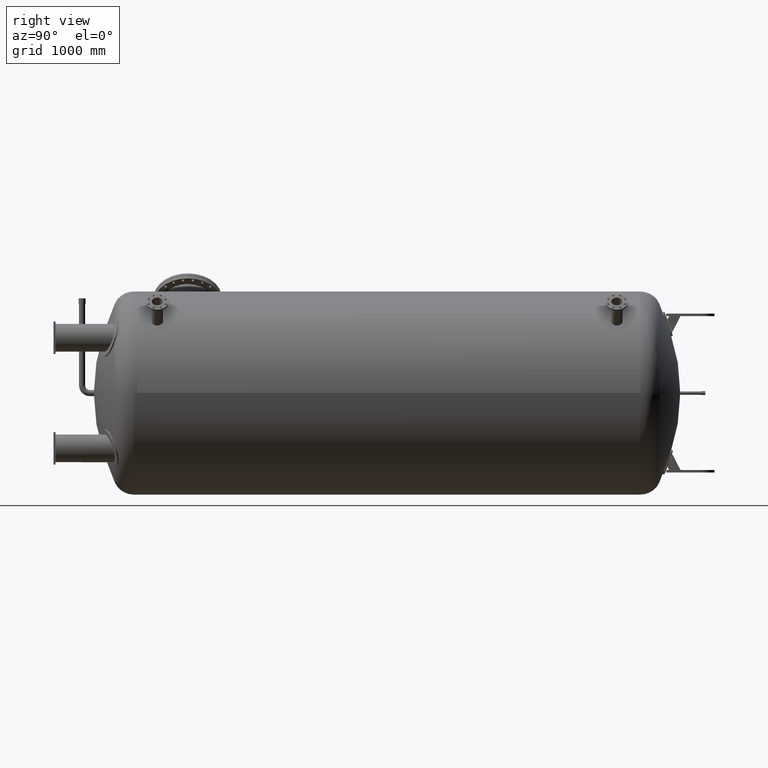
[diagram: clean part render]
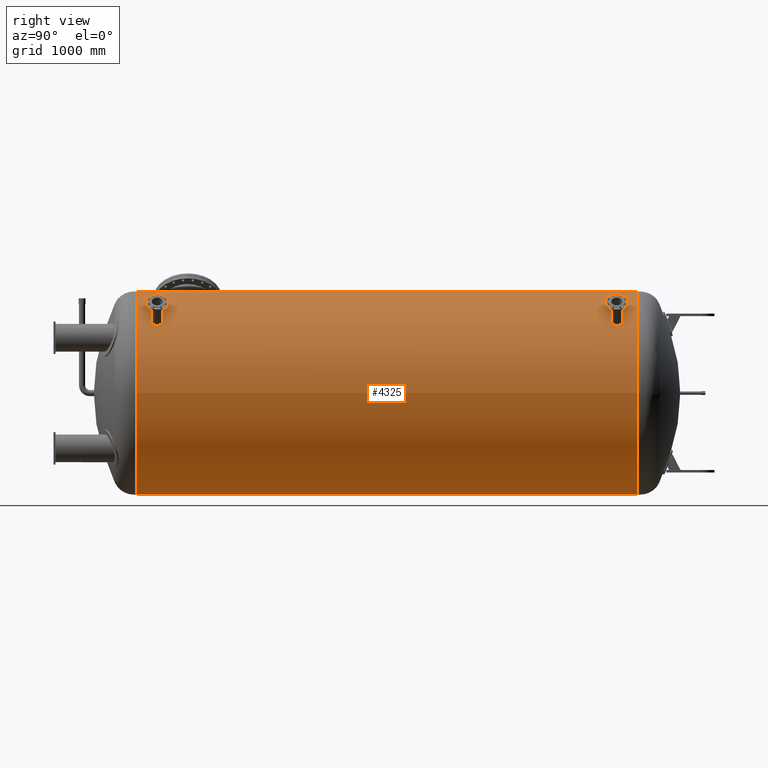
[diagram: same view with one face highlighted and labeled with its STEP entity id]
A machine part, right view. The second image highlights one B-rep face of the part: STEP entity #4325.
In plain terms, the highlighted cylindrical surface (bore or boss wall) has radius 1000 mm, axis along (0, 1, 0).
Its self-contained STEP definition (entity closure, byte-faithful):
#168=B_SPLINE_CURVE_WITH_KNOTS('',3,(#6986,#6987,#6988,#6989,#6990,#6991,
#6992,#6993,#6994,#6995,#6996,#6997,#6998,#6999,#7000,#7001,#7002,#7003),
 .UNSPECIFIED.,.F.,.F.,(4,2,2,2,2,2,2,2,4),(2.02660063331774,2.53325079136758,
3.03990094941743,3.54655110802646,4.05320126663548,4.55985142524451,5.06650158385354,
5.57315174190338,6.07980189995323),.UNSPECIFIED.);
#171=B_SPLINE_CURVE_WITH_KNOTS('',3,(#7043,#7044,#7045,#7046,#7047,#7048,
#7049,#7050,#7051,#7052,#7053,#7054,#7055,#7056,#7057,#7058,#7059,#7060,
#7061),.UNSPECIFIED.,.F.,.F.,(4,2,2,2,3,2,2,2,4),(6.07980189995323,6.58645205800307,
7.09310221605291,7.59975237466194,8.10640253327097,8.61305269188,9.11970285048903,
9.62635300853887,10.1330031665887),.UNSPECIFIED.);
#172=B_SPLINE_CURVE_WITH_KNOTS('',3,(#7065,#7066,#7067,#7068,#7069,#7070,
#7071,#7072,#7073,#7074,#7075,#7076,#7077,#7078,#7079,#7080,#7081,#7082),
 .UNSPECIFIED.,.F.,.F.,(4,2,2,2,2,2,2,2,4),(2.02660063331773,2.53325079136757,
3.0399009494174,3.54655110802643,4.05320126663546,4.55985142524449,5.06650158385352,
5.57315174190336,6.07980189995319),.UNSPECIFIED.);
#175=B_SPLINE_CURVE_WITH_KNOTS('',3,(#7122,#7123,#7124,#7125,#7126,#7127,
#7128,#7129,#7130,#7131,#7132,#7133,#7134,#7135,#7136,#7137,#7138,#7139,
#7140),.UNSPECIFIED.,.F.,.F.,(4,2,2,2,3,2,2,2,4),(6.07980189995319,6.58645205800303,
7.09310221605287,7.59975237466189,8.10640253327092,8.61305269187995,9.11970285048898,
9.62635300853882,10.1330031665887),.UNSPECIFIED.);
#176=B_SPLINE_CURVE_WITH_KNOTS('',3,(#7144,#7145,#7146,#7147,#7148,#7149,
#7150,#7151,#7152,#7153,#7154,#7155,#7156,#7157,#7158,#7159,#7160,#7161),
 .UNSPECIFIED.,.F.,.F.,(4,2,2,2,2,2,2,2,4),(2.02660063331772,2.53325079136756,
3.03990094941739,3.54655110802642,4.05320126663545,4.55985142524448,5.06650158385351,
5.57315174190334,6.07980189995318),.UNSPECIFIED.);
#179=B_SPLINE_CURVE_WITH_KNOTS('',3,(#7201,#7202,#7203,#7204,#7205,#7206,
#7207,#7208,#7209,#7210,#7211,#7212,#7213,#7214,#7215,#7216,#7217,#7218,
#7219),.UNSPECIFIED.,.F.,.F.,(4,2,2,2,3,2,2,2,4),(6.07980189995318,6.58645205800302,
7.09310221605285,7.59975237466188,8.10640253327091,8.61305269187994,9.11970285048897,
9.6263530085388,10.1330031665886),.UNSPECIFIED.);
#180=B_SPLINE_CURVE_WITH_KNOTS('',3,(#7223,#7224,#7225,#7226,#7227,#7228,
#7229,#7230,#7231,#7232,#7233,#7234,#7235,#7236,#7237,#7238,#7239,#7240),
 .UNSPECIFIED.,.F.,.F.,(4,2,2,2,2,2,2,2,4),(2.02660063331774,2.53325079136758,
3.03990094941743,3.54655110802646,4.05320126663548,4.55985142524451,5.06650158385354,
5.57315174190338,6.07980189995323),.UNSPECIFIED.);
#183=B_SPLINE_CURVE_WITH_KNOTS('',3,(#7280,#7281,#7282,#7283,#7284,#7285,
#7286,#7287,#7288,#7289,#7290,#7291,#7292,#7293,#7294,#7295,#7296,#7297,
#7298),.UNSPECIFIED.,.F.,.F.,(4,2,2,2,3,2,2,2,4),(6.07980189995323,6.58645205800307,
7.09310221605291,7.59975237466194,8.10640253327097,8.61305269188,9.11970285048903,
9.62635300853887,10.1330031665887),.UNSPECIFIED.);
#184=B_SPLINE_CURVE_WITH_KNOTS('',3,(#7302,#7303,#7304,#7305,#7306,#7307,
#7308,#7309,#7310,#7311,#7312,#7313,#7314,#7315,#7316,#7317,#7318,#7319),
 .UNSPECIFIED.,.F.,.F.,(4,2,2,2,2,2,2,2,4),(2.0266006333177,2.53325079136753,
3.03990094941737,3.54655110802638,4.0532012666354,4.55985142524445,5.06650158385351,
5.57315174190334,6.07980189995318),.UNSPECIFIED.);
#187=B_SPLINE_CURVE_WITH_KNOTS('',3,(#7359,#7360,#7361,#7362,#7363,#7364,
#7365,#7366,#7367,#7368,#7369,#7370,#7371,#7372,#7373,#7374,#7375,#7376,
#7377),.UNSPECIFIED.,.F.,.F.,(4,2,2,2,3,2,2,2,4),(6.07980189995318,6.58645205800302,
7.09310221605285,7.59975237466191,8.10640253327096,8.61305269187998,9.11970285048899,
9.62635300853883,10.1330031665887),.UNSPECIFIED.);
#188=B_SPLINE_CURVE_WITH_KNOTS('',3,(#7381,#7382,#7383,#7384,#7385,#7386,
#7387,#7388,#7389,#7390,#7391,#7392,#7393,#7394,#7395,#7396,#7397,#7398,
#7399,#7400,#7401,#7402,#7403,#7404,#7405,#7406,#7407,#7408,#7409,#7410,
#7411,#7412,#7413,#7414),.UNSPECIFIED.,.F.,.F.,(4,2,2,2,2,2,2,2,2,2,2,2,
2,2,2,2,4),(8.61307087268436,9.68970453753816,10.766338202392,11.8429718672457,
12.9196055320995,13.9962395854168,15.0728736387341,16.1495076920514,17.2261417453687,
18.302775798686,19.3794098520033,20.4560439053206,21.532677958638,22.6093116234917,
23.6859452883456,24.7625789531993,25.8392126180531),.UNSPECIFIED.);
#191=B_SPLINE_CURVE_WITH_KNOTS('',3,(#7486,#7487,#7488,#7489,#7490,#7491,
#7492,#7493,#7494,#7495,#7496,#7497,#7498,#7499,#7500,#7501,#7502,#7503,
#7504,#7505,#7506,#7507,#7508,#7509,#7510,#7511,#7512,#7513,#7514,#7515,
#7516,#7517,#7518,#7519,#7520),.UNSPECIFIED.,.F.,.F.,(4,2,2,2,2,2,2,2,3,
2,2,2,2,2,2,2,4),(25.8392126180531,26.9158462829069,27.9924799477607,29.0691136126145,
30.1457472774683,31.2223813307857,32.299015384103,33.3756494374203,34.4522834907376,
35.5289175440549,36.6055515973722,37.6821856506894,38.7588197040067,39.8354533688605,
40.9120870337143,41.9887206985681,43.0653543634219),.UNSPECIFIED.);
#192=B_SPLINE_CURVE_WITH_KNOTS('',3,(#7524,#7525,#7526,#7527,#7528,#7529,
#7530,#7531,#7532,#7533,#7534,#7535,#7536,#7537,#7538,#7539,#7540,#7541,
#7542,#7543,#7544,#7545,#7546,#7547,#7548,#7549,#7550,#7551,#7552,#7553,
#7554,#7555,#7556,#7557),.UNSPECIFIED.,.F.,.F.,(4,2,2,2,2,2,2,2,2,2,2,2,
2,2,2,2,4),(8.61307087268442,9.68970453753821,10.766338202392,11.8429718672458,
12.9196055320996,13.9962395854169,15.0728736387342,16.1495076920515,17.2261417453688,
18.3027757986862,19.3794098520035,20.4560439053208,21.5326779586381,22.6093116234919,
23.6859452883457,24.7625789531995,25.8392126180533),.UNSPECIFIED.);
#195=B_SPLINE_CURVE_WITH_KNOTS('',3,(#7629,#7630,#7631,#7632,#7633,#7634,
#7635,#7636,#7637,#7638,#7639,#7640,#7641,#7642,#7643,#7644,#7645,#7646,
#7647,#7648,#7649,#7650,#7651,#7652,#7653,#7654,#7655,#7656,#7657,#7658,
#7659,#7660,#7661,#7662,#7663),.UNSPECIFIED.,.F.,.F.,(4,2,2,2,2,2,2,2,3,
2,2,2,2,2,2,2,4),(25.8392126180533,26.9158462829071,27.9924799477609,29.0691136126147,
30.1457472774684,31.2223813307858,32.2990153841031,33.3756494374204,34.4522834907377,
35.528917544055,36.6055515973723,37.6821856506896,38.758819704007,39.8354533688608,
40.9120870337145,41.9887206985683,43.0653543634221),.UNSPECIFIED.);
#196=B_SPLINE_CURVE_WITH_KNOTS('',3,(#7667,#7668,#7669,#7670,#7671,#7672,
#7673,#7674,#7675,#7676,#7677,#7678,#7679,#7680,#7681,#7682,#7683,#7684,
#7685,#7686,#7687,#7688,#7689,#7690,#7691,#7692,#7693,#7694,#7695,#7696,
#7697,#7698,#7699,#7700),.UNSPECIFIED.,.F.,.F.,(4,2,2,2,2,2,2,2,2,2,2,2,
2,2,2,2,4),(8.61307087268436,9.68970453753816,10.766338202392,11.8429718672457,
12.9196055320995,13.9962395854168,15.0728736387341,16.1495076920514,17.2261417453687,
18.302775798686,19.3794098520033,20.4560439053206,21.532677958638,22.6093116234917,
23.6859452883456,24.7625789531993,25.8392126180531),.UNSPECIFIED.);
#199=B_SPLINE_CURVE_WITH_KNOTS('',3,(#7772,#7773,#7774,#7775,#7776,#7777,
#7778,#7779,#7780,#7781,#7782,#7783,#7784,#7785,#7786,#7787,#7788,#7789,
#7790,#7791,#7792,#7793,#7794,#7795,#7796,#7797,#7798,#7799,#7800,#7801,
#7802,#7803,#7804,#7805,#7806),.UNSPECIFIED.,.F.,.F.,(4,2,2,2,2,2,2,2,3,
2,2,2,2,2,2,2,4),(25.8392126180531,26.9158462829069,27.9924799477607,29.0691136126145,
30.1457472774683,31.2223813307857,32.299015384103,33.3756494374203,34.4522834907376,
35.5289175440549,36.6055515973722,37.6821856506894,38.7588197040067,39.8354533688605,
40.9120870337143,41.9887206985681,43.0653543634219),.UNSPECIFIED.);
#200=B_SPLINE_CURVE_WITH_KNOTS('',3,(#7810,#7811,#7812,#7813,#7814,#7815,
#7816,#7817,#7818,#7819,#7820,#7821,#7822,#7823,#7824,#7825,#7826,#7827,
#7828,#7829,#7830,#7831,#7832,#7833,#7834,#7835,#7836,#7837,#7838,#7839,
#7840,#7841,#7842,#7843),.UNSPECIFIED.,.F.,.F.,(4,2,2,2,2,2,2,2,2,2,2,2,
2,2,2,2,4),(8.61307087268442,9.68970453753821,10.766338202392,11.8429718672458,
12.9196055320996,13.9962395854169,15.0728736387342,16.1495076920515,17.2261417453688,
18.3027757986862,19.3794098520035,20.4560439053208,21.5326779586381,22.6093116234919,
23.6859452883457,24.7625789531995,25.8392126180533),.UNSPECIFIED.);
#203=B_SPLINE_CURVE_WITH_KNOTS('',3,(#7915,#7916,#7917,#7918,#7919,#7920,
#7921,#7922,#7923,#7924,#7925,#7926,#7927,#7928,#7929,#7930,#7931,#7932,
#7933,#7934,#7935,#7936,#7937,#7938,#7939,#7940,#7941,#7942,#7943,#7944,
#7945,#7946,#7947,#7948,#7949),.UNSPECIFIED.,.F.,.F.,(4,2,2,2,2,2,2,2,3,
2,2,2,2,2,2,2,4),(25.8392126180533,26.9158462829071,27.9924799477609,29.0691136126147,
30.1457472774684,31.2223813307858,32.2990153841031,33.3756494374204,34.4522834907377,
35.528917544055,36.6055515973723,37.6821856506896,38.758819704007,39.8354533688608,
40.9120870337145,41.9887206985683,43.0653543634221),.UNSPECIFIED.);
#204=B_SPLINE_CURVE_WITH_KNOTS('',3,(#7953,#7954,#7955,#7956,#7957,#7958,
#7959,#7960,#7961,#7962,#7963,#7964,#7965,#7966,#7967,#7968,#7969,#7970,
#7971,#7972,#7973,#7974,#7975,#7976,#7977,#7978,#7979,#7980,#7981,#7982,
#7983,#7984,#7985,#7986,#7987,#7988,#7989,#7990,#7991,#7992,#7993,#7994,
#7995,#7996,#7997,#7998,#7999,#8000,#8001,#8002,#8003,#8004,#8005,#8006,
#8007,#8008,#8009,#8010,#8011,#8012,#8013,#8014,#8015,#8016,#8017,#8018),
 .UNSPECIFIED.,.F.,.F.,(4,2,2,2,2,2,2,2,2,2,2,2,2,2,2,2,2,2,2,2,2,2,2,2,
2,2,2,2,2,2,2,2,4),(38.4535249335391,40.8566908462286,43.2598567589182,
45.6630226716077,48.0661885842972,50.4693544969867,52.8725204096762,55.2756863223657,
57.6788522350552,60.0823769390581,62.485901643061,64.8894263470639,67.2929510510668,
69.6964757550697,72.1000004590725,74.5035251630754,76.9070498670783,79.3105745710812,
81.7140992750841,84.117623979087,86.5211486830898,88.9246733870927,91.3281980910956,
93.7317227950985,96.1352474991014,98.5384134117909,100.94157932448,103.34474523717,
105.747911149859,108.151077062549,110.554242975238,112.957408887928,115.360574800617),
 .UNSPECIFIED.);
#207=B_SPLINE_CURVE_WITH_KNOTS('',3,(#8154,#8155,#8156,#8157,#8158,#8159,
#8160,#8161,#8162,#8163,#8164,#8165,#8166,#8167,#8168,#8169,#8170,#8171,
#8172,#8173,#8174,#8175,#8176,#8177,#8178,#8179,#8180,#8181,#8182,#8183,
#8184,#8185,#8186,#8187,#8188,#8189,#8190,#8191,#8192,#8193,#8194,#8195,
#8196,#8197,#8198,#8199,#8200,#8201,#8202,#8203,#8204,#8205,#8206,#8207,
#8208,#8209,#8210,#8211,#8212,#8213,#8214,#8215,#8216,#8217,#8218,#8219,
#8220),.UNSPECIFIED.,.F.,.F.,(4,2,2,2,2,2,2,2,2,2,2,2,2,2,2,2,3,2,2,2,2,
2,2,2,2,2,2,2,2,2,2,2,4),(115.360574800617,117.763740713307,120.166906625997,
122.570072538686,124.973238451376,127.376404364065,129.779570276755,132.182736189444,
134.585902102134,136.989426806136,139.392951510139,141.796476214142,144.200000918145,
146.603525622148,149.007050326151,151.410575030154,153.814099734157,156.21762443816,
158.621149142162,161.024673846165,163.428198550168,165.831723254171,168.235247958174,
170.638772662177,173.04229736618,175.445463278869,177.848629191559,180.251795104248,
182.654961016938,185.058126929627,187.461292842317,189.864458755006,192.267624667696),
 .UNSPECIFIED.);
#419=FACE_BOUND('',#862,.T.);
#420=FACE_BOUND('',#863,.T.);
#421=FACE_BOUND('',#864,.T.);
#422=FACE_BOUND('',#865,.T.);
#423=FACE_BOUND('',#866,.T.);
#424=FACE_BOUND('',#867,.T.);
#425=FACE_BOUND('',#868,.T.);
#426=FACE_BOUND('',#869,.T.);
#427=FACE_BOUND('',#870,.T.);
#428=FACE_BOUND('',#871,.T.);
#613=FACE_OUTER_BOUND('',#861,.T.);
#861=EDGE_LOOP('',(#3074,#3075,#3076,#3077,#3078,#3079));
#862=EDGE_LOOP('',(#3080,#3081));
#863=EDGE_LOOP('',(#3082,#3083));
#864=EDGE_LOOP('',(#3084,#3085));
#865=EDGE_LOOP('',(#3086,#3087));
#866=EDGE_LOOP('',(#3088,#3089));
#867=EDGE_LOOP('',(#3090,#3091));
#868=EDGE_LOOP('',(#3092,#3093));
#869=EDGE_LOOP('',(#3094,#3095));
#870=EDGE_LOOP('',(#3096,#3097));
#871=EDGE_LOOP('',(#3098,#3099));
#1247=LINE('',#8241,#1475);
#1475=VECTOR('',#5675,1000.);
#1711=CIRCLE('',#5033,1000.);
#1712=CIRCLE('',#5034,1000.);
#1713=CIRCLE('',#5036,1000.);
#1714=CIRCLE('',#5037,1000.);
#1978=VERTEX_POINT('',#6984);
#1979=VERTEX_POINT('',#6985);
#1982=VERTEX_POINT('',#7063);
#1983=VERTEX_POINT('',#7064);
#1986=VERTEX_POINT('',#7142);
#1987=VERTEX_POINT('',#7143);
#1990=VERTEX_POINT('',#7221);
#1991=VERTEX_POINT('',#7222);
#1994=VERTEX_POINT('',#7300);
#1995=VERTEX_POINT('',#7301);
#1998=VERTEX_POINT('',#7379);
#1999=VERTEX_POINT('',#7380);
#2002=VERTEX_POINT('',#7522);
#2003=VERTEX_POINT('',#7523);
#2006=VERTEX_POINT('',#7665);
#2007=VERTEX_POINT('',#7666);
#2010=VERTEX_POINT('',#7808);
#2011=VERTEX_POINT('',#7809);
#2014=VERTEX_POINT('',#7951);
#2015=VERTEX_POINT('',#7952);
#2022=VERTEX_POINT('',#8232);
#2023=VERTEX_POINT('',#8233);
#2024=VERTEX_POINT('',#8237);
#2025=VERTEX_POINT('',#8238);
#2384=EDGE_CURVE('',#1978,#1979,#168,.T.);
#2388=EDGE_CURVE('',#1979,#1978,#171,.T.);
#2389=EDGE_CURVE('',#1982,#1983,#172,.T.);
#2393=EDGE_CURVE('',#1983,#1982,#175,.T.);
#2394=EDGE_CURVE('',#1986,#1987,#176,.T.);
#2398=EDGE_CURVE('',#1987,#1986,#179,.T.);
#2399=EDGE_CURVE('',#1990,#1991,#180,.T.);
#2403=EDGE_CURVE('',#1991,#1990,#183,.T.);
#2404=EDGE_CURVE('',#1994,#1995,#184,.T.);
#2408=EDGE_CURVE('',#1995,#1994,#187,.T.);
#2409=EDGE_CURVE('',#1998,#1999,#188,.T.);
#2413=EDGE_CURVE('',#1999,#1998,#191,.T.);
#2414=EDGE_CURVE('',#2002,#2003,#192,.T.);
#2418=EDGE_CURVE('',#2003,#2002,#195,.T.);
#2419=EDGE_CURVE('',#2006,#2007,#196,.T.);
#2423=EDGE_CURVE('',#2007,#2006,#199,.T.);
#2424=EDGE_CURVE('',#2010,#2011,#200,.T.);
#2428=EDGE_CURVE('',#2011,#2010,#203,.T.);
#2429=EDGE_CURVE('',#2014,#2015,#204,.T.);
#2433=EDGE_CURVE('',#2015,#2014,#207,.T.);
#2439=EDGE_CURVE('',#2022,#2023,#1711,.T.);
#2440=EDGE_CURVE('',#2023,#2022,#1712,.T.);
#2441=EDGE_CURVE('',#2024,#2025,#1713,.T.);
#2442=EDGE_CURVE('',#2025,#2024,#1714,.T.);
#2443=EDGE_CURVE('',#2025,#2023,#1247,.T.);
#3074=ORIENTED_EDGE('',*,*,#2441,.F.);
#3075=ORIENTED_EDGE('',*,*,#2442,.F.);
#3076=ORIENTED_EDGE('',*,*,#2443,.T.);
#3077=ORIENTED_EDGE('',*,*,#2440,.T.);
#3078=ORIENTED_EDGE('',*,*,#2439,.T.);
#3079=ORIENTED_EDGE('',*,*,#2443,.F.);
#3080=ORIENTED_EDGE('',*,*,#2384,.T.);
#3081=ORIENTED_EDGE('',*,*,#2388,.T.);
#3082=ORIENTED_EDGE('',*,*,#2389,.T.);
#3083=ORIENTED_EDGE('',*,*,#2393,.T.);
#3084=ORIENTED_EDGE('',*,*,#2394,.T.);
#3085=ORIENTED_EDGE('',*,*,#2398,.T.);
#3086=ORIENTED_EDGE('',*,*,#2399,.T.);
#3087=ORIENTED_EDGE('',*,*,#2403,.T.);
#3088=ORIENTED_EDGE('',*,*,#2404,.T.);
#3089=ORIENTED_EDGE('',*,*,#2408,.T.);
#3090=ORIENTED_EDGE('',*,*,#2409,.T.);
#3091=ORIENTED_EDGE('',*,*,#2413,.T.);
#3092=ORIENTED_EDGE('',*,*,#2414,.T.);
#3093=ORIENTED_EDGE('',*,*,#2418,.T.);
#3094=ORIENTED_EDGE('',*,*,#2419,.T.);
#3095=ORIENTED_EDGE('',*,*,#2423,.T.);
#3096=ORIENTED_EDGE('',*,*,#2424,.T.);
#3097=ORIENTED_EDGE('',*,*,#2428,.T.);
#3098=ORIENTED_EDGE('',*,*,#2429,.T.);
#3099=ORIENTED_EDGE('',*,*,#2433,.T.);
#4114=CYLINDRICAL_SURFACE('',#5035,1000.);
#4325=ADVANCED_FACE('',(#613,#419,#420,#421,#422,#423,#424,#425,#426,#427,
#428),#4114,.T.);
#5033=AXIS2_PLACEMENT_3D('',#8234,#5665,#5666);
#5034=AXIS2_PLACEMENT_3D('',#8235,#5667,#5668);
#5035=AXIS2_PLACEMENT_3D('',#8236,#5669,#5670);
#5036=AXIS2_PLACEMENT_3D('',#8239,#5671,#5672);
#5037=AXIS2_PLACEMENT_3D('',#8240,#5673,#5674);
#5665=DIRECTION('center_axis',(0.,1.,0.));
#5666=DIRECTION('ref_axis',(1.,0.,0.));
#5667=DIRECTION('center_axis',(0.,1.,0.));
#5668=DIRECTION('ref_axis',(1.,0.,0.));
#5669=DIRECTION('center_axis',(0.,1.,0.));
#5670=DIRECTION('ref_axis',(-1.,0.,0.));
#5671=DIRECTION('center_axis',(0.,1.,0.));
#5672=DIRECTION('ref_axis',(1.,0.,0.));
#5673=DIRECTION('center_axis',(0.,1.,0.));
#5674=DIRECTION('ref_axis',(1.,0.,0.));
#5675=DIRECTION('',(0.,-1.,0.));
#6984=CARTESIAN_POINT('',(-939.692620785909,3607.2,342.020143325669));
#6985=CARTESIAN_POINT('',(-939.692620785909,3580.3,342.020143325669));
#6986=CARTESIAN_POINT('Ctrl Pts',(-939.692620785908,3607.2,342.020143325669));
#6987=CARTESIAN_POINT('Ctrl Pts',(-939.115005587001,3607.2,343.6071280418));
#6988=CARTESIAN_POINT('Ctrl Pts',(-938.494460783695,3606.86248201896,345.298265940961));
#6989=CARTESIAN_POINT('Ctrl Pts',(-937.345047756917,3605.48985399326,348.40638172843));
#6990=CARTESIAN_POINT('Ctrl Pts',(-936.816408682386,3604.45474507635,349.823444851599));
#6991=CARTESIAN_POINT('Ctrl Pts',(-935.978210479479,3602.06642733625,352.059960307954));
#6992=CARTESIAN_POINT('Ctrl Pts',(-935.612817189783,3600.55401836514,353.028507927965));
#6993=CARTESIAN_POINT('Ctrl Pts',(-935.127321645761,3597.24022248818,354.312522233281));
#6994=CARTESIAN_POINT('Ctrl Pts',(-935.007449641651,3595.43883386203,354.628071526517));
#6995=CARTESIAN_POINT('Ctrl Pts',(-935.007449641651,3592.06116613797,354.628071526517));
#6996=CARTESIAN_POINT('Ctrl Pts',(-935.127321645761,3590.25977751182,354.312522233281));
#6997=CARTESIAN_POINT('Ctrl Pts',(-935.612817189783,3586.94598163486,353.028507927965));
#6998=CARTESIAN_POINT('Ctrl Pts',(-935.978210479479,3585.43357266375,352.059960307954));
#6999=CARTESIAN_POINT('Ctrl Pts',(-936.816408682386,3583.04525492365,349.823444851599));
#7000=CARTESIAN_POINT('Ctrl Pts',(-937.345047756917,3582.01014600674,348.40638172843));
#7001=CARTESIAN_POINT('Ctrl Pts',(-938.494460783695,3580.63751798104,345.298265940961));
#7002=CARTESIAN_POINT('Ctrl Pts',(-939.115005587001,3580.3,343.6071280418));
#7003=CARTESIAN_POINT('Ctrl Pts',(-939.692620785909,3580.3,342.020143325669));
#7043=CARTESIAN_POINT('Ctrl Pts',(-939.692620785909,3580.3,342.020143325669));
#7044=CARTESIAN_POINT('Ctrl Pts',(-940.270235984816,3580.3,340.433158609537));
#7045=CARTESIAN_POINT('Ctrl Pts',(-940.881913574389,3580.63751798104,338.738793308516));
#7046=CARTESIAN_POINT('Ctrl Pts',(-941.999270430033,3582.01014600674,335.619010028931));
#7047=CARTESIAN_POINT('Ctrl Pts',(-942.505180022289,3583.04525492365,334.193674050773));
#7048=CARTESIAN_POINT('Ctrl Pts',(-943.300687370937,3585.43357266375,331.941620394192));
#7049=CARTESIAN_POINT('Ctrl Pts',(-943.643350281347,3586.94598163486,330.964799592708));
#7050=CARTESIAN_POINT('Ctrl Pts',(-944.096787603808,3590.25977751182,329.66911704898));
#7051=CARTESIAN_POINT('Ctrl Pts',(-944.207791497111,3592.06116613797,329.350340027376));
#7052=CARTESIAN_POINT('Ctrl Pts',(-944.207791497111,3593.75,329.350340027376));
#7053=CARTESIAN_POINT('Ctrl Pts',(-944.207791497111,3595.43883386203,329.350340027376));
#7054=CARTESIAN_POINT('Ctrl Pts',(-944.096787603808,3597.24022248818,329.66911704898));
#7055=CARTESIAN_POINT('Ctrl Pts',(-943.643350281347,3600.55401836514,330.964799592708));
#7056=CARTESIAN_POINT('Ctrl Pts',(-943.300687370937,3602.06642733625,331.941620394192));
#7057=CARTESIAN_POINT('Ctrl Pts',(-942.505180022289,3604.45474507635,334.193674050773));
#7058=CARTESIAN_POINT('Ctrl Pts',(-941.999270430033,3605.48985399326,335.619010028931));
#7059=CARTESIAN_POINT('Ctrl Pts',(-940.881913574389,3606.86248201896,338.738793308516));
#7060=CARTESIAN_POINT('Ctrl Pts',(-940.270235984816,3607.2,340.433158609537));
#7061=CARTESIAN_POINT('Ctrl Pts',(-939.692620785908,3607.2,342.020143325669));
#7063=CARTESIAN_POINT('',(-939.692620785909,2475.95,342.020143325669));
#7064=CARTESIAN_POINT('',(-939.692620785909,2449.05,342.020143325669));
#7065=CARTESIAN_POINT('Ctrl Pts',(-939.692620785908,2475.95,342.020143325669));
#7066=CARTESIAN_POINT('Ctrl Pts',(-939.115005587001,2475.95,343.6071280418));
#7067=CARTESIAN_POINT('Ctrl Pts',(-938.494460783695,2475.61248201896,345.298265940961));
#7068=CARTESIAN_POINT('Ctrl Pts',(-937.345047756917,2474.23985399326,348.40638172843));
#7069=CARTESIAN_POINT('Ctrl Pts',(-936.816408682386,2473.20474507635,349.823444851599));
#7070=CARTESIAN_POINT('Ctrl Pts',(-935.978210479479,2470.81642733625,352.059960307954));
#7071=CARTESIAN_POINT('Ctrl Pts',(-935.612817189783,2469.30401836514,353.028507927964));
#7072=CARTESIAN_POINT('Ctrl Pts',(-935.127321645761,2465.99022248818,354.31252223328));
#7073=CARTESIAN_POINT('Ctrl Pts',(-935.007449641651,2464.18883386203,354.628071526517));
#7074=CARTESIAN_POINT('Ctrl Pts',(-935.007449641651,2460.81116613797,354.628071526517));
#7075=CARTESIAN_POINT('Ctrl Pts',(-935.127321645761,2459.00977751182,354.31252223328));
#7076=CARTESIAN_POINT('Ctrl Pts',(-935.612817189783,2455.69598163486,353.028507927964));
#7077=CARTESIAN_POINT('Ctrl Pts',(-935.978210479479,2454.18357266375,352.059960307954));
#7078=CARTESIAN_POINT('Ctrl Pts',(-936.816408682386,2451.79525492365,349.823444851599));
#7079=CARTESIAN_POINT('Ctrl Pts',(-937.345047756917,2450.76014600674,348.40638172843));
#7080=CARTESIAN_POINT('Ctrl Pts',(-938.494460783695,2449.38751798104,345.298265940961));
#7081=CARTESIAN_POINT('Ctrl Pts',(-939.115005587001,2449.05,343.6071280418));
#7082=CARTESIAN_POINT('Ctrl Pts',(-939.692620785908,2449.05,342.020143325669));
#7122=CARTESIAN_POINT('Ctrl Pts',(-939.692620785909,2449.05,342.020143325669));
#7123=CARTESIAN_POINT('Ctrl Pts',(-940.270235984816,2449.05,340.433158609537));
#7124=CARTESIAN_POINT('Ctrl Pts',(-940.881913574389,2449.38751798104,338.738793308516));
#7125=CARTESIAN_POINT('Ctrl Pts',(-941.999270430033,2450.76014600674,335.619010028931));
#7126=CARTESIAN_POINT('Ctrl Pts',(-942.505180022289,2451.79525492365,334.193674050773));
#7127=CARTESIAN_POINT('Ctrl Pts',(-943.300687370937,2454.18357266375,331.941620394192));
#7128=CARTESIAN_POINT('Ctrl Pts',(-943.643350281347,2455.69598163486,330.964799592708));
#7129=CARTESIAN_POINT('Ctrl Pts',(-944.096787603807,2459.00977751182,329.66911704898));
#7130=CARTESIAN_POINT('Ctrl Pts',(-944.207791497111,2460.81116613797,329.350340027376));
#7131=CARTESIAN_POINT('Ctrl Pts',(-944.207791497111,2462.5,329.350340027376));
#7132=CARTESIAN_POINT('Ctrl Pts',(-944.207791497111,2464.18883386203,329.350340027376));
#7133=CARTESIAN_POINT('Ctrl Pts',(-944.096787603807,2465.99022248818,329.66911704898));
#7134=CARTESIAN_POINT('Ctrl Pts',(-943.643350281347,2469.30401836514,330.964799592708));
#7135=CARTESIAN_POINT('Ctrl Pts',(-943.300687370937,2470.81642733625,331.941620394192));
#7136=CARTESIAN_POINT('Ctrl Pts',(-942.505180022289,2473.20474507635,334.193674050773));
#7137=CARTESIAN_POINT('Ctrl Pts',(-941.999270430033,2474.23985399326,335.619010028931));
#7138=CARTESIAN_POINT('Ctrl Pts',(-940.881913574389,2475.61248201896,338.738793308516));
#7139=CARTESIAN_POINT('Ctrl Pts',(-940.270235984816,2475.95,340.433158609537));
#7140=CARTESIAN_POINT('Ctrl Pts',(-939.692620785909,2475.95,342.020143325669));
#7142=CARTESIAN_POINT('',(-939.692620785909,1344.7,342.020143325669));
#7143=CARTESIAN_POINT('',(-939.692620785909,1317.8,342.020143325669));
#7144=CARTESIAN_POINT('Ctrl Pts',(-939.692620785908,1344.7,342.020143325669));
#7145=CARTESIAN_POINT('Ctrl Pts',(-939.115005587001,1344.7,343.6071280418));
#7146=CARTESIAN_POINT('Ctrl Pts',(-938.494460783695,1344.36248201896,345.298265940961));
#7147=CARTESIAN_POINT('Ctrl Pts',(-937.345047756917,1342.98985399326,348.40638172843));
#7148=CARTESIAN_POINT('Ctrl Pts',(-936.816408682386,1341.95474507635,349.823444851599));
#7149=CARTESIAN_POINT('Ctrl Pts',(-935.978210479479,1339.56642733625,352.059960307954));
#7150=CARTESIAN_POINT('Ctrl Pts',(-935.612817189783,1338.05401836514,353.028507927964));
#7151=CARTESIAN_POINT('Ctrl Pts',(-935.127321645761,1334.74022248818,354.31252223328));
#7152=CARTESIAN_POINT('Ctrl Pts',(-935.007449641651,1332.93883386203,354.628071526517));
#7153=CARTESIAN_POINT('Ctrl Pts',(-935.007449641651,1329.56116613797,354.628071526517));
#7154=CARTESIAN_POINT('Ctrl Pts',(-935.127321645761,1327.75977751182,354.31252223328));
#7155=CARTESIAN_POINT('Ctrl Pts',(-935.612817189783,1324.44598163486,353.028507927964));
#7156=CARTESIAN_POINT('Ctrl Pts',(-935.978210479479,1322.93357266375,352.059960307954));
#7157=CARTESIAN_POINT('Ctrl Pts',(-936.816408682386,1320.54525492365,349.823444851599));
#7158=CARTESIAN_POINT('Ctrl Pts',(-937.345047756917,1319.51014600674,348.40638172843));
#7159=CARTESIAN_POINT('Ctrl Pts',(-938.494460783695,1318.13751798104,345.298265940961));
#7160=CARTESIAN_POINT('Ctrl Pts',(-939.115005587001,1317.8,343.6071280418));
#7161=CARTESIAN_POINT('Ctrl Pts',(-939.692620785908,1317.8,342.020143325669));
#7201=CARTESIAN_POINT('Ctrl Pts',(-939.692620785909,1317.8,342.020143325669));
#7202=CARTESIAN_POINT('Ctrl Pts',(-940.270235984816,1317.8,340.433158609537));
#7203=CARTESIAN_POINT('Ctrl Pts',(-940.881913574389,1318.13751798104,338.738793308516));
#7204=CARTESIAN_POINT('Ctrl Pts',(-941.999270430033,1319.51014600674,335.619010028931));
#7205=CARTESIAN_POINT('Ctrl Pts',(-942.505180022289,1320.54525492365,334.193674050773));
#7206=CARTESIAN_POINT('Ctrl Pts',(-943.300687370937,1322.93357266375,331.941620394192));
#7207=CARTESIAN_POINT('Ctrl Pts',(-943.643350281347,1324.44598163486,330.964799592708));
#7208=CARTESIAN_POINT('Ctrl Pts',(-944.096787603807,1327.75977751182,329.66911704898));
#7209=CARTESIAN_POINT('Ctrl Pts',(-944.207791497111,1329.56116613797,329.350340027376));
#7210=CARTESIAN_POINT('Ctrl Pts',(-944.207791497111,1331.25,329.350340027376));
#7211=CARTESIAN_POINT('Ctrl Pts',(-944.207791497111,1332.93883386203,329.350340027376));
#7212=CARTESIAN_POINT('Ctrl Pts',(-944.096787603807,1334.74022248818,329.66911704898));
#7213=CARTESIAN_POINT('Ctrl Pts',(-943.643350281347,1338.05401836514,330.964799592708));
#7214=CARTESIAN_POINT('Ctrl Pts',(-943.300687370937,1339.56642733625,331.941620394192));
#7215=CARTESIAN_POINT('Ctrl Pts',(-942.505180022289,1341.95474507635,334.193674050773));
#7216=CARTESIAN_POINT('Ctrl Pts',(-941.999270430033,1342.98985399326,335.619010028931));
#7217=CARTESIAN_POINT('Ctrl Pts',(-940.881913574389,1344.36248201896,338.738793308516));
#7218=CARTESIAN_POINT('Ctrl Pts',(-940.270235984816,1344.7,340.433158609537));
#7219=CARTESIAN_POINT('Ctrl Pts',(-939.692620785909,1344.7,342.020143325669));
#7221=CARTESIAN_POINT('',(-939.692620785909,4738.45,342.020143325669));
#7222=CARTESIAN_POINT('',(-939.692620785909,4711.55,342.020143325669));
#7223=CARTESIAN_POINT('Ctrl Pts',(-939.692620785908,4738.45,342.020143325669));
#7224=CARTESIAN_POINT('Ctrl Pts',(-939.115005587001,4738.45,343.6071280418));
#7225=CARTESIAN_POINT('Ctrl Pts',(-938.494460783695,4738.11248201896,345.298265940961));
#7226=CARTESIAN_POINT('Ctrl Pts',(-937.345047756917,4736.73985399326,348.40638172843));
#7227=CARTESIAN_POINT('Ctrl Pts',(-936.816408682386,4735.70474507635,349.823444851599));
#7228=CARTESIAN_POINT('Ctrl Pts',(-935.978210479479,4733.31642733625,352.059960307954));
#7229=CARTESIAN_POINT('Ctrl Pts',(-935.612817189783,4731.80401836514,353.028507927965));
#7230=CARTESIAN_POINT('Ctrl Pts',(-935.127321645761,4728.49022248818,354.312522233281));
#7231=CARTESIAN_POINT('Ctrl Pts',(-935.007449641651,4726.68883386203,354.628071526517));
#7232=CARTESIAN_POINT('Ctrl Pts',(-935.007449641651,4723.31116613797,354.628071526517));
#7233=CARTESIAN_POINT('Ctrl Pts',(-935.127321645761,4721.50977751182,354.312522233281));
#7234=CARTESIAN_POINT('Ctrl Pts',(-935.612817189783,4718.19598163486,353.028507927965));
#7235=CARTESIAN_POINT('Ctrl Pts',(-935.978210479479,4716.68357266375,352.059960307954));
#7236=CARTESIAN_POINT('Ctrl Pts',(-936.816408682386,4714.29525492365,349.823444851599));
#7237=CARTESIAN_POINT('Ctrl Pts',(-937.345047756917,4713.26014600674,348.40638172843));
#7238=CARTESIAN_POINT('Ctrl Pts',(-938.494460783695,4711.88751798104,345.298265940961));
#7239=CARTESIAN_POINT('Ctrl Pts',(-939.115005587001,4711.55,343.6071280418));
#7240=CARTESIAN_POINT('Ctrl Pts',(-939.692620785909,4711.55,342.020143325669));
#7280=CARTESIAN_POINT('Ctrl Pts',(-939.692620785909,4711.55,342.020143325669));
#7281=CARTESIAN_POINT('Ctrl Pts',(-940.270235984816,4711.55,340.433158609537));
#7282=CARTESIAN_POINT('Ctrl Pts',(-940.881913574389,4711.88751798104,338.738793308516));
#7283=CARTESIAN_POINT('Ctrl Pts',(-941.999270430033,4713.26014600674,335.619010028931));
#7284=CARTESIAN_POINT('Ctrl Pts',(-942.505180022289,4714.29525492365,334.193674050773));
#7285=CARTESIAN_POINT('Ctrl Pts',(-943.300687370937,4716.68357266375,331.941620394192));
#7286=CARTESIAN_POINT('Ctrl Pts',(-943.643350281347,4718.19598163486,330.964799592708));
#7287=CARTESIAN_POINT('Ctrl Pts',(-944.096787603808,4721.50977751182,329.66911704898));
#7288=CARTESIAN_POINT('Ctrl Pts',(-944.207791497111,4723.31116613797,329.350340027376));
#7289=CARTESIAN_POINT('Ctrl Pts',(-944.207791497111,4725.,329.350340027376));
#7290=CARTESIAN_POINT('Ctrl Pts',(-944.207791497111,4726.68883386203,329.350340027376));
#7291=CARTESIAN_POINT('Ctrl Pts',(-944.096787603808,4728.49022248818,329.66911704898));
#7292=CARTESIAN_POINT('Ctrl Pts',(-943.643350281347,4731.80401836514,330.964799592708));
#7293=CARTESIAN_POINT('Ctrl Pts',(-943.300687370937,4733.31642733625,331.941620394192));
#7294=CARTESIAN_POINT('Ctrl Pts',(-942.505180022289,4735.70474507635,334.193674050773));
#7295=CARTESIAN_POINT('Ctrl Pts',(-941.999270430033,4736.73985399326,335.619010028931));
#7296=CARTESIAN_POINT('Ctrl Pts',(-940.881913574389,4738.11248201896,338.738793308516));
#7297=CARTESIAN_POINT('Ctrl Pts',(-940.270235984816,4738.45,340.433158609537));
#7298=CARTESIAN_POINT('Ctrl Pts',(-939.692620785909,4738.45,342.020143325669));
#7300=CARTESIAN_POINT('',(-939.692620785909,213.45,342.020143325669));
#7301=CARTESIAN_POINT('',(-939.692620785909,186.55,342.020143325669));
#7302=CARTESIAN_POINT('Ctrl Pts',(-939.692620785908,213.45,342.020143325669));
#7303=CARTESIAN_POINT('Ctrl Pts',(-939.115005587001,213.45,343.6071280418));
#7304=CARTESIAN_POINT('Ctrl Pts',(-938.494460783695,213.112482018962,345.298265940961));
#7305=CARTESIAN_POINT('Ctrl Pts',(-937.345047756917,211.739853993261,348.40638172843));
#7306=CARTESIAN_POINT('Ctrl Pts',(-936.816408682386,210.704745076352,349.823444851599));
#7307=CARTESIAN_POINT('Ctrl Pts',(-935.978210479479,208.316427336248,352.059960307954));
#7308=CARTESIAN_POINT('Ctrl Pts',(-935.612817189783,206.804018365138,353.028507927964));
#7309=CARTESIAN_POINT('Ctrl Pts',(-935.127321645761,203.49022248818,354.31252223328));
#7310=CARTESIAN_POINT('Ctrl Pts',(-935.007449641651,201.68883386203,354.628071526517));
#7311=CARTESIAN_POINT('Ctrl Pts',(-935.007449641651,198.31116613797,354.628071526517));
#7312=CARTESIAN_POINT('Ctrl Pts',(-935.127321645761,196.50977751182,354.31252223328));
#7313=CARTESIAN_POINT('Ctrl Pts',(-935.612817189783,193.195981634862,353.028507927964));
#7314=CARTESIAN_POINT('Ctrl Pts',(-935.978210479479,191.683572663752,352.059960307954));
#7315=CARTESIAN_POINT('Ctrl Pts',(-936.816408682386,189.295254923648,349.823444851599));
#7316=CARTESIAN_POINT('Ctrl Pts',(-937.345047756917,188.260146006739,348.40638172843));
#7317=CARTESIAN_POINT('Ctrl Pts',(-938.494460783695,186.887517981038,345.298265940961));
#7318=CARTESIAN_POINT('Ctrl Pts',(-939.115005587001,186.55,343.6071280418));
#7319=CARTESIAN_POINT('Ctrl Pts',(-939.692620785908,186.55,342.020143325669));
#7359=CARTESIAN_POINT('Ctrl Pts',(-939.692620785909,186.55,342.020143325669));
#7360=CARTESIAN_POINT('Ctrl Pts',(-940.270235984816,186.55,340.433158609537));
#7361=CARTESIAN_POINT('Ctrl Pts',(-940.881913574389,186.887517981038,338.738793308516));
#7362=CARTESIAN_POINT('Ctrl Pts',(-941.999270430033,188.260146006739,335.619010028931));
#7363=CARTESIAN_POINT('Ctrl Pts',(-942.505180022289,189.295254923648,334.193674050773));
#7364=CARTESIAN_POINT('Ctrl Pts',(-943.300687370937,191.683572663752,331.941620394192));
#7365=CARTESIAN_POINT('Ctrl Pts',(-943.643350281347,193.195981634862,330.964799592708));
#7366=CARTESIAN_POINT('Ctrl Pts',(-944.096787603808,196.50977751182,329.66911704898));
#7367=CARTESIAN_POINT('Ctrl Pts',(-944.207791497111,198.31116613797,329.350340027376));
#7368=CARTESIAN_POINT('Ctrl Pts',(-944.207791497111,200.,329.350340027376));
#7369=CARTESIAN_POINT('Ctrl Pts',(-944.207791497111,201.68883386203,329.350340027376));
#7370=CARTESIAN_POINT('Ctrl Pts',(-944.096787603808,203.49022248818,329.66911704898));
#7371=CARTESIAN_POINT('Ctrl Pts',(-943.643350281347,206.804018365138,330.964799592708));
#7372=CARTESIAN_POINT('Ctrl Pts',(-943.300687370937,208.316427336248,331.941620394192));
#7373=CARTESIAN_POINT('Ctrl Pts',(-942.505180022289,210.704745076352,334.193674050773));
#7374=CARTESIAN_POINT('Ctrl Pts',(-941.999270430033,211.739853993261,335.619010028931));
#7375=CARTESIAN_POINT('Ctrl Pts',(-940.881913574389,213.112482018962,338.738793308516));
#7376=CARTESIAN_POINT('Ctrl Pts',(-940.270235984816,213.45,340.433158609537));
#7377=CARTESIAN_POINT('Ctrl Pts',(-939.692620785909,213.45,342.020143325669));
#7379=CARTESIAN_POINT('',(707.106781186547,4782.15,707.106781186548));
#7380=CARTESIAN_POINT('',(707.106781186547,4667.85,707.106781186548));
#7381=CARTESIAN_POINT('Ctrl Pts',(707.106781186548,4782.15,707.106781186547));
#7382=CARTESIAN_POINT('Ctrl Pts',(709.644431070787,4782.15,704.569131302308));
#7383=CARTESIAN_POINT('Ctrl Pts',(712.254560767613,4781.8065147803,701.930954696801));
#7384=CARTESIAN_POINT('Ctrl Pts',(717.416929511821,4780.3598736802,696.653840688228));
#7385=CARTESIAN_POINT('Ctrl Pts',(719.969249198234,4779.25702984623,694.014896632893));
#7386=CARTESIAN_POINT('Ctrl Pts',(724.838413793596,4776.34060274867,688.92791381159));
#7387=CARTESIAN_POINT('Ctrl Pts',(727.159246114698,4774.52469734979,686.475912512371));
#7388=CARTESIAN_POINT('Ctrl Pts',(731.431556629879,4770.32841034688,681.92200847002));
#7389=CARTESIAN_POINT('Ctrl Pts',(733.383057792307,4767.94776533606,679.820370004182));
#7390=CARTESIAN_POINT('Ctrl Pts',(736.825284688646,4762.87453883832,676.087971182422));
#7391=CARTESIAN_POINT('Ctrl Pts',(738.43356250517,4760.0085358994,674.329508397264));
#7392=CARTESIAN_POINT('Ctrl Pts',(741.259901524111,4753.76746001161,671.221402014164));
#7393=CARTESIAN_POINT('Ctrl Pts',(742.478293267998,4750.39255771165,669.871716340578));
#7394=CARTESIAN_POINT('Ctrl Pts',(744.431483117032,4743.35249968429,667.700456250725));
#7395=CARTESIAN_POINT('Ctrl Pts',(745.167936770066,4739.68172252556,666.877253213364));
#7396=CARTESIAN_POINT('Ctrl Pts',(746.133407033817,4732.29989363771,665.796863729234));
#7397=CARTESIAN_POINT('Ctrl Pts',(746.362240616782,4728.58878017772,665.53993552716));
#7398=CARTESIAN_POINT('Ctrl Pts',(746.362240616782,4721.41121982228,665.53993552716));
#7399=CARTESIAN_POINT('Ctrl Pts',(746.133407033817,4717.70010636229,665.796863729234));
#7400=CARTESIAN_POINT('Ctrl Pts',(745.167936770066,4710.31827747444,666.877253213364));
#7401=CARTESIAN_POINT('Ctrl Pts',(744.431483117033,4706.64750031571,667.700456250725));
#7402=CARTESIAN_POINT('Ctrl Pts',(742.478293267998,4699.60744228835,669.871716340579));
#7403=CARTESIAN_POINT('Ctrl Pts',(741.259901524111,4696.23253998839,671.221402014164));
#7404=CARTESIAN_POINT('Ctrl Pts',(738.43356250517,4689.9914641006,674.329508397264));
#7405=CARTESIAN_POINT('Ctrl Pts',(736.825284688646,4687.12546116168,676.087971182422));
#7406=CARTESIAN_POINT('Ctrl Pts',(733.383057792307,4682.05223466394,679.820370004182));
#7407=CARTESIAN_POINT('Ctrl Pts',(731.431556629879,4679.67158965312,681.92200847002));
#7408=CARTESIAN_POINT('Ctrl Pts',(727.159246114698,4675.47530265021,686.475912512371));
#7409=CARTESIAN_POINT('Ctrl Pts',(724.838413793596,4673.65939725133,688.92791381159));
#7410=CARTESIAN_POINT('Ctrl Pts',(719.969249198234,4670.74297015377,694.014896632893));
#7411=CARTESIAN_POINT('Ctrl Pts',(717.41692951182,4669.6401263198,696.653840688228));
#7412=CARTESIAN_POINT('Ctrl Pts',(712.254560767613,4668.1934852197,701.930954696801));
#7413=CARTESIAN_POINT('Ctrl Pts',(709.644431070787,4667.85,704.569131302308));
#7414=CARTESIAN_POINT('Ctrl Pts',(707.106781186548,4667.85,707.106781186548));
#7486=CARTESIAN_POINT('Ctrl Pts',(707.106781186547,4667.85,707.106781186548));
#7487=CARTESIAN_POINT('Ctrl Pts',(704.569131302308,4667.85,709.644431070787));
#7488=CARTESIAN_POINT('Ctrl Pts',(701.930954696801,4668.1934852197,712.254560767613));
#7489=CARTESIAN_POINT('Ctrl Pts',(696.653840688228,4669.6401263198,717.41692951182));
#7490=CARTESIAN_POINT('Ctrl Pts',(694.014896632893,4670.74297015377,719.969249198234));
#7491=CARTESIAN_POINT('Ctrl Pts',(688.92791381159,4673.65939725133,724.838413793596));
#7492=CARTESIAN_POINT('Ctrl Pts',(686.475912512371,4675.47530265021,727.159246114699));
#7493=CARTESIAN_POINT('Ctrl Pts',(681.92200847002,4679.67158965312,731.431556629879));
#7494=CARTESIAN_POINT('Ctrl Pts',(679.820370004182,4682.05223466394,733.383057792307));
#7495=CARTESIAN_POINT('Ctrl Pts',(676.087971182422,4687.12546116168,736.825284688646));
#7496=CARTESIAN_POINT('Ctrl Pts',(674.329508397264,4689.9914641006,738.433562505171));
#7497=CARTESIAN_POINT('Ctrl Pts',(671.221402014164,4696.23253998839,741.259901524112));
#7498=CARTESIAN_POINT('Ctrl Pts',(669.871716340578,4699.60744228835,742.478293267998));
#7499=CARTESIAN_POINT('Ctrl Pts',(667.700456250724,4706.64750031571,744.431483117033));
#7500=CARTESIAN_POINT('Ctrl Pts',(666.877253213364,4710.31827747444,745.167936770066));
#7501=CARTESIAN_POINT('Ctrl Pts',(665.796863729234,4717.70010636229,746.133407033817));
#7502=CARTESIAN_POINT('Ctrl Pts',(665.53993552716,4721.41121982228,746.362240616782));
#7503=CARTESIAN_POINT('Ctrl Pts',(665.53993552716,4725.,746.362240616782));
#7504=CARTESIAN_POINT('Ctrl Pts',(665.53993552716,4728.58878017772,746.362240616782));
#7505=CARTESIAN_POINT('Ctrl Pts',(665.796863729234,4732.29989363771,746.133407033817));
#7506=CARTESIAN_POINT('Ctrl Pts',(666.877253213364,4739.68172252556,745.167936770066));
#7507=CARTESIAN_POINT('Ctrl Pts',(667.700456250724,4743.35249968429,744.431483117032));
#7508=CARTESIAN_POINT('Ctrl Pts',(669.871716340578,4750.39255771165,742.478293267998));
#7509=CARTESIAN_POINT('Ctrl Pts',(671.221402014164,4753.76746001161,741.259901524111));
#7510=CARTESIAN_POINT('Ctrl Pts',(674.329508397264,4760.0085358994,738.43356250517));
#7511=CARTESIAN_POINT('Ctrl Pts',(676.087971182422,4762.87453883832,736.825284688647));
#7512=CARTESIAN_POINT('Ctrl Pts',(679.820370004182,4767.94776533606,733.383057792307));
#7513=CARTESIAN_POINT('Ctrl Pts',(681.92200847002,4770.32841034688,731.431556629879));
#7514=CARTESIAN_POINT('Ctrl Pts',(686.475912512371,4774.52469734979,727.159246114698));
#7515=CARTESIAN_POINT('Ctrl Pts',(688.92791381159,4776.34060274867,724.838413793596));
#7516=CARTESIAN_POINT('Ctrl Pts',(694.014896632893,4779.25702984623,719.969249198234));
#7517=CARTESIAN_POINT('Ctrl Pts',(696.653840688228,4780.3598736802,717.416929511821));
#7518=CARTESIAN_POINT('Ctrl Pts',(701.930954696801,4781.8065147803,712.254560767613));
#7519=CARTESIAN_POINT('Ctrl Pts',(704.569131302308,4782.15,709.644431070787));
#7520=CARTESIAN_POINT('Ctrl Pts',(707.106781186548,4782.15,707.106781186548));
#7522=CARTESIAN_POINT('',(707.106781186547,257.15,707.106781186548));
#7523=CARTESIAN_POINT('',(707.106781186547,142.85,707.106781186548));
#7524=CARTESIAN_POINT('Ctrl Pts',(707.106781186547,257.15,707.106781186548));
#7525=CARTESIAN_POINT('Ctrl Pts',(709.644431070787,257.15,704.569131302308));
#7526=CARTESIAN_POINT('Ctrl Pts',(712.254560767612,256.806514780296,701.930954696801));
#7527=CARTESIAN_POINT('Ctrl Pts',(717.41692951182,255.359873680201,696.653840688228));
#7528=CARTESIAN_POINT('Ctrl Pts',(719.969249198234,254.257029846229,694.014896632893));
#7529=CARTESIAN_POINT('Ctrl Pts',(724.838413793596,251.340602748671,688.92791381159));
#7530=CARTESIAN_POINT('Ctrl Pts',(727.159246114698,249.524697349786,686.475912512371));
#7531=CARTESIAN_POINT('Ctrl Pts',(731.431556629878,245.328410346886,681.922008470021));
#7532=CARTESIAN_POINT('Ctrl Pts',(733.383057792307,242.947765336062,679.820370004182));
#7533=CARTESIAN_POINT('Ctrl Pts',(736.825284688646,237.874538838318,676.087971182422));
#7534=CARTESIAN_POINT('Ctrl Pts',(738.43356250517,235.008535899401,674.329508397265));
#7535=CARTESIAN_POINT('Ctrl Pts',(741.259901524111,228.767460011607,671.221402014165));
#7536=CARTESIAN_POINT('Ctrl Pts',(742.478293267998,225.392557711651,669.871716340579));
#7537=CARTESIAN_POINT('Ctrl Pts',(744.431483117032,218.352499684288,667.700456250725));
#7538=CARTESIAN_POINT('Ctrl Pts',(745.167936770065,214.681722525558,666.877253213364));
#7539=CARTESIAN_POINT('Ctrl Pts',(746.133407033817,207.29989363771,665.796863729234));
#7540=CARTESIAN_POINT('Ctrl Pts',(746.362240616782,203.588780177725,665.53993552716));
#7541=CARTESIAN_POINT('Ctrl Pts',(746.362240616782,196.411219822276,665.53993552716));
#7542=CARTESIAN_POINT('Ctrl Pts',(746.133407033817,192.70010636229,665.796863729234));
#7543=CARTESIAN_POINT('Ctrl Pts',(745.167936770066,185.318277474443,666.877253213364));
#7544=CARTESIAN_POINT('Ctrl Pts',(744.431483117032,181.647500315713,667.700456250725));
#7545=CARTESIAN_POINT('Ctrl Pts',(742.478293267998,174.60744228835,669.871716340579));
#7546=CARTESIAN_POINT('Ctrl Pts',(741.259901524111,171.232539988393,671.221402014165));
#7547=CARTESIAN_POINT('Ctrl Pts',(738.43356250517,164.991464100599,674.329508397265));
#7548=CARTESIAN_POINT('Ctrl Pts',(736.825284688646,162.125461161683,676.087971182422));
#7549=CARTESIAN_POINT('Ctrl Pts',(733.383057792307,157.052234663939,679.820370004182));
#7550=CARTESIAN_POINT('Ctrl Pts',(731.431556629878,154.671589653114,681.922008470021));
#7551=CARTESIAN_POINT('Ctrl Pts',(727.159246114698,150.475302650214,686.475912512371));
#7552=CARTESIAN_POINT('Ctrl Pts',(724.838413793596,148.659397251329,688.92791381159));
#7553=CARTESIAN_POINT('Ctrl Pts',(719.969249198234,145.742970153771,694.014896632893));
#7554=CARTESIAN_POINT('Ctrl Pts',(717.41692951182,144.640126319799,696.653840688228));
#7555=CARTESIAN_POINT('Ctrl Pts',(712.254560767612,143.193485219704,701.930954696801));
#7556=CARTESIAN_POINT('Ctrl Pts',(709.644431070787,142.85,704.569131302308));
#7557=CARTESIAN_POINT('Ctrl Pts',(707.106781186547,142.85,707.106781186548));
#7629=CARTESIAN_POINT('Ctrl Pts',(707.106781186547,142.85,707.106781186547));
#7630=CARTESIAN_POINT('Ctrl Pts',(704.569131302308,142.85,709.644431070787));
#7631=CARTESIAN_POINT('Ctrl Pts',(701.930954696801,143.193485219704,712.254560767612));
#7632=CARTESIAN_POINT('Ctrl Pts',(696.653840688228,144.640126319799,717.41692951182));
#7633=CARTESIAN_POINT('Ctrl Pts',(694.014896632893,145.742970153771,719.969249198234));
#7634=CARTESIAN_POINT('Ctrl Pts',(688.92791381159,148.659397251329,724.838413793596));
#7635=CARTESIAN_POINT('Ctrl Pts',(686.475912512371,150.475302650214,727.159246114698));
#7636=CARTESIAN_POINT('Ctrl Pts',(681.92200847002,154.671589653114,731.431556629878));
#7637=CARTESIAN_POINT('Ctrl Pts',(679.820370004182,157.052234663939,733.383057792307));
#7638=CARTESIAN_POINT('Ctrl Pts',(676.087971182422,162.125461161683,736.825284688646));
#7639=CARTESIAN_POINT('Ctrl Pts',(674.329508397264,164.991464100599,738.43356250517));
#7640=CARTESIAN_POINT('Ctrl Pts',(671.221402014165,171.232539988393,741.259901524111));
#7641=CARTESIAN_POINT('Ctrl Pts',(669.871716340578,174.60744228835,742.478293267998));
#7642=CARTESIAN_POINT('Ctrl Pts',(667.700456250725,181.647500315713,744.431483117032));
#7643=CARTESIAN_POINT('Ctrl Pts',(666.877253213364,185.318277474443,745.167936770066));
#7644=CARTESIAN_POINT('Ctrl Pts',(665.796863729234,192.70010636229,746.133407033817));
#7645=CARTESIAN_POINT('Ctrl Pts',(665.53993552716,196.411219822276,746.362240616782));
#7646=CARTESIAN_POINT('Ctrl Pts',(665.53993552716,200.,746.362240616782));
#7647=CARTESIAN_POINT('Ctrl Pts',(665.53993552716,203.588780177725,746.362240616782));
#7648=CARTESIAN_POINT('Ctrl Pts',(665.796863729234,207.29989363771,746.133407033817));
#7649=CARTESIAN_POINT('Ctrl Pts',(666.877253213364,214.681722525557,745.167936770066));
#7650=CARTESIAN_POINT('Ctrl Pts',(667.700456250725,218.352499684288,744.431483117033));
#7651=CARTESIAN_POINT('Ctrl Pts',(669.871716340579,225.392557711651,742.478293267998));
#7652=CARTESIAN_POINT('Ctrl Pts',(671.221402014165,228.767460011607,741.259901524111));
#7653=CARTESIAN_POINT('Ctrl Pts',(674.329508397265,235.008535899401,738.43356250517));
#7654=CARTESIAN_POINT('Ctrl Pts',(676.087971182422,237.874538838318,736.825284688646));
#7655=CARTESIAN_POINT('Ctrl Pts',(679.820370004182,242.947765336062,733.383057792307));
#7656=CARTESIAN_POINT('Ctrl Pts',(681.922008470021,245.328410346886,731.431556629878));
#7657=CARTESIAN_POINT('Ctrl Pts',(686.475912512371,249.524697349786,727.159246114698));
#7658=CARTESIAN_POINT('Ctrl Pts',(688.927913811591,251.340602748671,724.838413793595));
#7659=CARTESIAN_POINT('Ctrl Pts',(694.014896632893,254.257029846229,719.969249198234));
#7660=CARTESIAN_POINT('Ctrl Pts',(696.653840688229,255.359873680201,717.41692951182));
#7661=CARTESIAN_POINT('Ctrl Pts',(701.930954696801,256.806514780296,712.254560767612));
#7662=CARTESIAN_POINT('Ctrl Pts',(704.569131302308,257.15,709.644431070787));
#7663=CARTESIAN_POINT('Ctrl Pts',(707.106781186548,257.15,707.106781186548));
#7665=CARTESIAN_POINT('',(-707.106781186547,4782.15,-707.106781186548));
#7666=CARTESIAN_POINT('',(-707.106781186547,4667.85,-707.106781186548));
#7667=CARTESIAN_POINT('Ctrl Pts',(-707.106781186548,4782.15,-707.106781186547));
#7668=CARTESIAN_POINT('Ctrl Pts',(-709.644431070787,4782.15,-704.569131302308));
#7669=CARTESIAN_POINT('Ctrl Pts',(-712.254560767613,4781.8065147803,-701.930954696801));
#7670=CARTESIAN_POINT('Ctrl Pts',(-717.416929511821,4780.3598736802,-696.653840688228));
#7671=CARTESIAN_POINT('Ctrl Pts',(-719.969249198234,4779.25702984623,-694.014896632893));
#7672=CARTESIAN_POINT('Ctrl Pts',(-724.838413793596,4776.34060274867,-688.92791381159));
#7673=CARTESIAN_POINT('Ctrl Pts',(-727.159246114698,4774.52469734979,-686.475912512371));
#7674=CARTESIAN_POINT('Ctrl Pts',(-731.431556629879,4770.32841034688,-681.92200847002));
#7675=CARTESIAN_POINT('Ctrl Pts',(-733.383057792307,4767.94776533606,-679.820370004182));
#7676=CARTESIAN_POINT('Ctrl Pts',(-736.825284688646,4762.87453883832,-676.087971182422));
#7677=CARTESIAN_POINT('Ctrl Pts',(-738.43356250517,4760.0085358994,-674.329508397264));
#7678=CARTESIAN_POINT('Ctrl Pts',(-741.259901524111,4753.76746001161,-671.221402014164));
#7679=CARTESIAN_POINT('Ctrl Pts',(-742.478293267998,4750.39255771165,-669.871716340578));
#7680=CARTESIAN_POINT('Ctrl Pts',(-744.431483117032,4743.35249968429,-667.700456250725));
#7681=CARTESIAN_POINT('Ctrl Pts',(-745.167936770066,4739.68172252556,-666.877253213364));
#7682=CARTESIAN_POINT('Ctrl Pts',(-746.133407033817,4732.29989363771,-665.796863729234));
#7683=CARTESIAN_POINT('Ctrl Pts',(-746.362240616782,4728.58878017772,-665.53993552716));
#7684=CARTESIAN_POINT('Ctrl Pts',(-746.362240616782,4721.41121982228,-665.53993552716));
#7685=CARTESIAN_POINT('Ctrl Pts',(-746.133407033817,4717.70010636229,-665.796863729234));
#7686=CARTESIAN_POINT('Ctrl Pts',(-745.167936770066,4710.31827747444,-666.877253213364));
#7687=CARTESIAN_POINT('Ctrl Pts',(-744.431483117033,4706.64750031571,-667.700456250725));
#7688=CARTESIAN_POINT('Ctrl Pts',(-742.478293267998,4699.60744228835,-669.871716340579));
#7689=CARTESIAN_POINT('Ctrl Pts',(-741.259901524111,4696.23253998839,-671.221402014164));
#7690=CARTESIAN_POINT('Ctrl Pts',(-738.43356250517,4689.9914641006,-674.329508397264));
#7691=CARTESIAN_POINT('Ctrl Pts',(-736.825284688646,4687.12546116168,-676.087971182422));
#7692=CARTESIAN_POINT('Ctrl Pts',(-733.383057792307,4682.05223466394,-679.820370004182));
#7693=CARTESIAN_POINT('Ctrl Pts',(-731.431556629879,4679.67158965312,-681.92200847002));
#7694=CARTESIAN_POINT('Ctrl Pts',(-727.159246114698,4675.47530265021,-686.475912512371));
#7695=CARTESIAN_POINT('Ctrl Pts',(-724.838413793596,4673.65939725133,-688.92791381159));
#7696=CARTESIAN_POINT('Ctrl Pts',(-719.969249198234,4670.74297015377,-694.014896632893));
#7697=CARTESIAN_POINT('Ctrl Pts',(-717.41692951182,4669.6401263198,-696.653840688228));
#7698=CARTESIAN_POINT('Ctrl Pts',(-712.254560767613,4668.1934852197,-701.930954696801));
#7699=CARTESIAN_POINT('Ctrl Pts',(-709.644431070787,4667.85,-704.569131302308));
#7700=CARTESIAN_POINT('Ctrl Pts',(-707.106781186548,4667.85,-707.106781186548));
#7772=CARTESIAN_POINT('Ctrl Pts',(-707.106781186547,4667.85,-707.106781186548));
#7773=CARTESIAN_POINT('Ctrl Pts',(-704.569131302308,4667.85,-709.644431070787));
#7774=CARTESIAN_POINT('Ctrl Pts',(-701.930954696801,4668.1934852197,-712.254560767613));
#7775=CARTESIAN_POINT('Ctrl Pts',(-696.653840688228,4669.6401263198,-717.41692951182));
#7776=CARTESIAN_POINT('Ctrl Pts',(-694.014896632893,4670.74297015377,-719.969249198234));
#7777=CARTESIAN_POINT('Ctrl Pts',(-688.92791381159,4673.65939725133,-724.838413793596));
#7778=CARTESIAN_POINT('Ctrl Pts',(-686.475912512371,4675.47530265021,-727.159246114699));
#7779=CARTESIAN_POINT('Ctrl Pts',(-681.92200847002,4679.67158965312,-731.431556629879));
#7780=CARTESIAN_POINT('Ctrl Pts',(-679.820370004182,4682.05223466394,-733.383057792307));
#7781=CARTESIAN_POINT('Ctrl Pts',(-676.087971182422,4687.12546116168,-736.825284688646));
#7782=CARTESIAN_POINT('Ctrl Pts',(-674.329508397264,4689.9914641006,-738.433562505171));
#7783=CARTESIAN_POINT('Ctrl Pts',(-671.221402014164,4696.23253998839,-741.259901524112));
#7784=CARTESIAN_POINT('Ctrl Pts',(-669.871716340578,4699.60744228835,-742.478293267998));
#7785=CARTESIAN_POINT('Ctrl Pts',(-667.700456250724,4706.64750031571,-744.431483117033));
#7786=CARTESIAN_POINT('Ctrl Pts',(-666.877253213364,4710.31827747444,-745.167936770066));
#7787=CARTESIAN_POINT('Ctrl Pts',(-665.796863729234,4717.70010636229,-746.133407033817));
#7788=CARTESIAN_POINT('Ctrl Pts',(-665.53993552716,4721.41121982228,-746.362240616782));
#7789=CARTESIAN_POINT('Ctrl Pts',(-665.53993552716,4725.,-746.362240616782));
#7790=CARTESIAN_POINT('Ctrl Pts',(-665.53993552716,4728.58878017772,-746.362240616782));
#7791=CARTESIAN_POINT('Ctrl Pts',(-665.796863729234,4732.29989363771,-746.133407033817));
#7792=CARTESIAN_POINT('Ctrl Pts',(-666.877253213364,4739.68172252556,-745.167936770066));
#7793=CARTESIAN_POINT('Ctrl Pts',(-667.700456250724,4743.35249968429,-744.431483117032));
#7794=CARTESIAN_POINT('Ctrl Pts',(-669.871716340578,4750.39255771165,-742.478293267998));
#7795=CARTESIAN_POINT('Ctrl Pts',(-671.221402014164,4753.76746001161,-741.259901524111));
#7796=CARTESIAN_POINT('Ctrl Pts',(-674.329508397264,4760.0085358994,-738.43356250517));
#7797=CARTESIAN_POINT('Ctrl Pts',(-676.087971182422,4762.87453883832,-736.825284688647));
#7798=CARTESIAN_POINT('Ctrl Pts',(-679.820370004182,4767.94776533606,-733.383057792307));
#7799=CARTESIAN_POINT('Ctrl Pts',(-681.92200847002,4770.32841034688,-731.431556629879));
#7800=CARTESIAN_POINT('Ctrl Pts',(-686.475912512371,4774.52469734979,-727.159246114698));
#7801=CARTESIAN_POINT('Ctrl Pts',(-688.92791381159,4776.34060274867,-724.838413793596));
#7802=CARTESIAN_POINT('Ctrl Pts',(-694.014896632893,4779.25702984623,-719.969249198234));
#7803=CARTESIAN_POINT('Ctrl Pts',(-696.653840688228,4780.3598736802,-717.416929511821));
#7804=CARTESIAN_POINT('Ctrl Pts',(-701.930954696801,4781.8065147803,-712.254560767613));
#7805=CARTESIAN_POINT('Ctrl Pts',(-704.569131302308,4782.15,-709.644431070787));
#7806=CARTESIAN_POINT('Ctrl Pts',(-707.106781186548,4782.15,-707.106781186548));
#7808=CARTESIAN_POINT('',(-707.106781186547,257.15,-707.106781186548));
#7809=CARTESIAN_POINT('',(-707.106781186547,142.85,-707.106781186548));
#7810=CARTESIAN_POINT('Ctrl Pts',(-707.106781186547,257.15,-707.106781186548));
#7811=CARTESIAN_POINT('Ctrl Pts',(-709.644431070787,257.15,-704.569131302308));
#7812=CARTESIAN_POINT('Ctrl Pts',(-712.254560767612,256.806514780296,-701.930954696801));
#7813=CARTESIAN_POINT('Ctrl Pts',(-717.41692951182,255.359873680201,-696.653840688228));
#7814=CARTESIAN_POINT('Ctrl Pts',(-719.969249198234,254.257029846229,-694.014896632893));
#7815=CARTESIAN_POINT('Ctrl Pts',(-724.838413793596,251.340602748671,-688.92791381159));
#7816=CARTESIAN_POINT('Ctrl Pts',(-727.159246114698,249.524697349786,-686.475912512371));
#7817=CARTESIAN_POINT('Ctrl Pts',(-731.431556629878,245.328410346886,-681.922008470021));
#7818=CARTESIAN_POINT('Ctrl Pts',(-733.383057792307,242.947765336062,-679.820370004182));
#7819=CARTESIAN_POINT('Ctrl Pts',(-736.825284688646,237.874538838318,-676.087971182422));
#7820=CARTESIAN_POINT('Ctrl Pts',(-738.43356250517,235.008535899401,-674.329508397265));
#7821=CARTESIAN_POINT('Ctrl Pts',(-741.259901524111,228.767460011607,-671.221402014165));
#7822=CARTESIAN_POINT('Ctrl Pts',(-742.478293267998,225.392557711651,-669.871716340579));
#7823=CARTESIAN_POINT('Ctrl Pts',(-744.431483117032,218.352499684288,-667.700456250725));
#7824=CARTESIAN_POINT('Ctrl Pts',(-745.167936770065,214.681722525558,-666.877253213364));
#7825=CARTESIAN_POINT('Ctrl Pts',(-746.133407033817,207.29989363771,-665.796863729234));
#7826=CARTESIAN_POINT('Ctrl Pts',(-746.362240616782,203.588780177725,-665.53993552716));
#7827=CARTESIAN_POINT('Ctrl Pts',(-746.362240616782,196.411219822276,-665.53993552716));
#7828=CARTESIAN_POINT('Ctrl Pts',(-746.133407033817,192.70010636229,-665.796863729234));
#7829=CARTESIAN_POINT('Ctrl Pts',(-745.167936770066,185.318277474443,-666.877253213364));
#7830=CARTESIAN_POINT('Ctrl Pts',(-744.431483117032,181.647500315713,-667.700456250725));
#7831=CARTESIAN_POINT('Ctrl Pts',(-742.478293267998,174.60744228835,-669.871716340579));
#7832=CARTESIAN_POINT('Ctrl Pts',(-741.259901524111,171.232539988393,-671.221402014165));
#7833=CARTESIAN_POINT('Ctrl Pts',(-738.43356250517,164.991464100599,-674.329508397265));
#7834=CARTESIAN_POINT('Ctrl Pts',(-736.825284688646,162.125461161683,-676.087971182422));
#7835=CARTESIAN_POINT('Ctrl Pts',(-733.383057792307,157.052234663939,-679.820370004182));
#7836=CARTESIAN_POINT('Ctrl Pts',(-731.431556629878,154.671589653114,-681.922008470021));
#7837=CARTESIAN_POINT('Ctrl Pts',(-727.159246114698,150.475302650214,-686.475912512371));
#7838=CARTESIAN_POINT('Ctrl Pts',(-724.838413793596,148.659397251329,-688.92791381159));
#7839=CARTESIAN_POINT('Ctrl Pts',(-719.969249198234,145.742970153771,-694.014896632893));
#7840=CARTESIAN_POINT('Ctrl Pts',(-717.41692951182,144.640126319799,-696.653840688228));
#7841=CARTESIAN_POINT('Ctrl Pts',(-712.254560767612,143.193485219704,-701.930954696801));
#7842=CARTESIAN_POINT('Ctrl Pts',(-709.644431070787,142.85,-704.569131302308));
#7843=CARTESIAN_POINT('Ctrl Pts',(-707.106781186547,142.85,-707.106781186548));
#7915=CARTESIAN_POINT('Ctrl Pts',(-707.106781186547,142.85,-707.106781186547));
#7916=CARTESIAN_POINT('Ctrl Pts',(-704.569131302308,142.85,-709.644431070787));
#7917=CARTESIAN_POINT('Ctrl Pts',(-701.930954696801,143.193485219704,-712.254560767612));
#7918=CARTESIAN_POINT('Ctrl Pts',(-696.653840688228,144.640126319799,-717.41692951182));
#7919=CARTESIAN_POINT('Ctrl Pts',(-694.014896632893,145.742970153771,-719.969249198234));
#7920=CARTESIAN_POINT('Ctrl Pts',(-688.92791381159,148.659397251329,-724.838413793596));
#7921=CARTESIAN_POINT('Ctrl Pts',(-686.475912512371,150.475302650214,-727.159246114698));
#7922=CARTESIAN_POINT('Ctrl Pts',(-681.92200847002,154.671589653114,-731.431556629878));
#7923=CARTESIAN_POINT('Ctrl Pts',(-679.820370004182,157.052234663939,-733.383057792307));
#7924=CARTESIAN_POINT('Ctrl Pts',(-676.087971182422,162.125461161683,-736.825284688646));
#7925=CARTESIAN_POINT('Ctrl Pts',(-674.329508397264,164.991464100599,-738.43356250517));
#7926=CARTESIAN_POINT('Ctrl Pts',(-671.221402014165,171.232539988393,-741.259901524111));
#7927=CARTESIAN_POINT('Ctrl Pts',(-669.871716340578,174.60744228835,-742.478293267998));
#7928=CARTESIAN_POINT('Ctrl Pts',(-667.700456250725,181.647500315713,-744.431483117032));
#7929=CARTESIAN_POINT('Ctrl Pts',(-666.877253213364,185.318277474443,-745.167936770066));
#7930=CARTESIAN_POINT('Ctrl Pts',(-665.796863729234,192.70010636229,-746.133407033817));
#7931=CARTESIAN_POINT('Ctrl Pts',(-665.53993552716,196.411219822276,-746.362240616782));
#7932=CARTESIAN_POINT('Ctrl Pts',(-665.53993552716,200.,-746.362240616782));
#7933=CARTESIAN_POINT('Ctrl Pts',(-665.53993552716,203.588780177725,-746.362240616782));
#7934=CARTESIAN_POINT('Ctrl Pts',(-665.796863729234,207.29989363771,-746.133407033817));
#7935=CARTESIAN_POINT('Ctrl Pts',(-666.877253213364,214.681722525557,-745.167936770066));
#7936=CARTESIAN_POINT('Ctrl Pts',(-667.700456250725,218.352499684288,-744.431483117033));
#7937=CARTESIAN_POINT('Ctrl Pts',(-669.871716340579,225.392557711651,-742.478293267998));
#7938=CARTESIAN_POINT('Ctrl Pts',(-671.221402014165,228.767460011607,-741.259901524111));
#7939=CARTESIAN_POINT('Ctrl Pts',(-674.329508397265,235.008535899401,-738.43356250517));
#7940=CARTESIAN_POINT('Ctrl Pts',(-676.087971182422,237.874538838318,-736.825284688646));
#7941=CARTESIAN_POINT('Ctrl Pts',(-679.820370004182,242.947765336062,-733.383057792307));
#7942=CARTESIAN_POINT('Ctrl Pts',(-681.922008470021,245.328410346886,-731.431556629878));
#7943=CARTESIAN_POINT('Ctrl Pts',(-686.475912512371,249.524697349786,-727.159246114698));
#7944=CARTESIAN_POINT('Ctrl Pts',(-688.927913811591,251.340602748671,-724.838413793595));
#7945=CARTESIAN_POINT('Ctrl Pts',(-694.014896632893,254.257029846229,-719.969249198234));
#7946=CARTESIAN_POINT('Ctrl Pts',(-696.653840688229,255.359873680201,-717.41692951182));
#7947=CARTESIAN_POINT('Ctrl Pts',(-701.930954696801,256.806514780296,-712.254560767612));
#7948=CARTESIAN_POINT('Ctrl Pts',(-704.569131302308,257.15,-709.644431070787));
#7949=CARTESIAN_POINT('Ctrl Pts',(-707.106781186548,257.15,-707.106781186548));
#7951=CARTESIAN_POINT('',(-707.106781186548,754.,707.106781186547));
#7952=CARTESIAN_POINT('',(-707.106781186548,246.,707.106781186547));
#7953=CARTESIAN_POINT('Ctrl Pts',(-707.106781186548,754.,707.106781186547));
#7954=CARTESIAN_POINT('Ctrl Pts',(-701.442464809284,754.,712.771097563811));
#7955=CARTESIAN_POINT('Ctrl Pts',(-695.616487912616,753.61948232549,718.460072329645));
#7956=CARTESIAN_POINT('Ctrl Pts',(-683.746888412054,752.041485135201,729.76528169997));
#7957=CARTESIAN_POINT('Ctrl Pts',(-677.703260656205,750.844066375571,735.381519375654));
#7958=CARTESIAN_POINT('Ctrl Pts',(-665.511924656523,747.612725409988,746.432560036907));
#7959=CARTESIAN_POINT('Ctrl Pts',(-659.36354661514,745.578675553934,751.868015247344));
#7960=CARTESIAN_POINT('Ctrl Pts',(-647.079795185253,740.687559826208,762.46543372135));
#7961=CARTESIAN_POINT('Ctrl Pts',(-640.944456166485,737.830524839211,767.627451078146));
#7962=CARTESIAN_POINT('Ctrl Pts',(-628.806830253093,731.33906397478,777.60122799684));
#7963=CARTESIAN_POINT('Ctrl Pts',(-622.798962654596,727.701648571983,782.417676477069));
#7964=CARTESIAN_POINT('Ctrl Pts',(-611.023062062339,719.714353910144,791.648145311653));
#7965=CARTESIAN_POINT('Ctrl Pts',(-605.255101150324,715.364457937842,796.062243162706));
#7966=CARTESIAN_POINT('Ctrl Pts',(-594.070733425941,706.05158026524,804.44315905184));
#7967=CARTESIAN_POINT('Ctrl Pts',(-588.653860799507,701.088091619494,808.410471442118));
#7968=CARTESIAN_POINT('Ctrl Pts',(-578.271398723838,690.673738966898,815.86950401974));
#7969=CARTESIAN_POINT('Ctrl Pts',(-573.305918274951,685.22281821313,819.361296696976));
#7970=CARTESIAN_POINT('Ctrl Pts',(-563.910114037665,673.986587910828,825.855921743154));
#7971=CARTESIAN_POINT('Ctrl Pts',(-559.316173460858,668.005759429676,828.971421081175));
#7972=CARTESIAN_POINT('Ctrl Pts',(-550.480770425344,655.389165541314,834.864731711774));
#7973=CARTESIAN_POINT('Ctrl Pts',(-546.239357587105,648.753427386797,837.642675739215));
#7974=CARTESIAN_POINT('Ctrl Pts',(-538.235047112257,634.918921888594,842.808235639027));
#7975=CARTESIAN_POINT('Ctrl Pts',(-534.471812179784,627.71947958901,845.196230903937));
#7976=CARTESIAN_POINT('Ctrl Pts',(-527.528170310518,612.866733630201,849.547418498709));
#7977=CARTESIAN_POINT('Ctrl Pts',(-524.347836227624,605.213425546211,851.510711984307));
#7978=CARTESIAN_POINT('Ctrl Pts',(-518.650410760649,589.579541319456,854.992923165477));
#7979=CARTESIAN_POINT('Ctrl Pts',(-516.130759935067,581.591713189507,856.513511181244));
#7980=CARTESIAN_POINT('Ctrl Pts',(-511.805431547636,565.413223430926,859.105090443265));
#7981=CARTESIAN_POINT('Ctrl Pts',(-509.999832617096,557.222546627761,860.176118193629));
#7982=CARTESIAN_POINT('Ctrl Pts',(-507.126753457942,540.7878700082,861.873099424538));
#7983=CARTESIAN_POINT('Ctrl Pts',(-506.059181677617,532.542928371522,862.49914196396));
#7984=CARTESIAN_POINT('Ctrl Pts',(-504.651552661257,516.154870835726,863.323505787592));
#7985=CARTESIAN_POINT('Ctrl Pts',(-504.311539168317,508.011749013343,863.521784011083));
#7986=CARTESIAN_POINT('Ctrl Pts',(-504.311539168317,491.988250986657,863.521784011083));
#7987=CARTESIAN_POINT('Ctrl Pts',(-504.651552661257,483.845129164274,863.323505787592));
#7988=CARTESIAN_POINT('Ctrl Pts',(-506.059181677616,467.457071628478,862.49914196396));
#7989=CARTESIAN_POINT('Ctrl Pts',(-507.126753457942,459.2121299918,861.873099424538));
#7990=CARTESIAN_POINT('Ctrl Pts',(-509.999832617096,442.777453372239,860.176118193629));
#7991=CARTESIAN_POINT('Ctrl Pts',(-511.805431547635,434.586776569075,859.105090443265));
#7992=CARTESIAN_POINT('Ctrl Pts',(-516.130759935066,418.408286810493,856.513511181244));
#7993=CARTESIAN_POINT('Ctrl Pts',(-518.650410760649,410.420458680544,854.992923165477));
#7994=CARTESIAN_POINT('Ctrl Pts',(-524.347836227623,394.786574453789,851.510711984307));
#7995=CARTESIAN_POINT('Ctrl Pts',(-527.528170310518,387.133266369799,849.547418498709));
#7996=CARTESIAN_POINT('Ctrl Pts',(-534.471812179783,372.28052041099,845.196230903937));
#7997=CARTESIAN_POINT('Ctrl Pts',(-538.235047112257,365.081078111406,842.808235639027));
#7998=CARTESIAN_POINT('Ctrl Pts',(-546.239357587105,351.246572613203,837.642675739215));
#7999=CARTESIAN_POINT('Ctrl Pts',(-550.480770425345,344.610834458685,834.864731711774));
#8000=CARTESIAN_POINT('Ctrl Pts',(-559.316173460858,331.994240570324,828.971421081175));
#8001=CARTESIAN_POINT('Ctrl Pts',(-563.910114037665,326.013412089172,825.855921743154));
#8002=CARTESIAN_POINT('Ctrl Pts',(-573.305918274951,314.77718178687,819.361296696976));
#8003=CARTESIAN_POINT('Ctrl Pts',(-578.271398723838,309.326261033102,815.86950401974));
#8004=CARTESIAN_POINT('Ctrl Pts',(-588.653860799507,298.911908380506,808.410471442118));
#8005=CARTESIAN_POINT('Ctrl Pts',(-594.070733425941,293.94841973476,804.44315905184));
#8006=CARTESIAN_POINT('Ctrl Pts',(-605.255101150324,284.635542062158,796.062243162706));
#8007=CARTESIAN_POINT('Ctrl Pts',(-611.023062062339,280.285646089856,791.648145311653));
#8008=CARTESIAN_POINT('Ctrl Pts',(-622.798962654596,272.298351428017,782.417676477069));
#8009=CARTESIAN_POINT('Ctrl Pts',(-628.806830253093,268.66093602522,777.60122799684));
#8010=CARTESIAN_POINT('Ctrl Pts',(-640.944456166484,262.169475160789,767.627451078146));
#8011=CARTESIAN_POINT('Ctrl Pts',(-647.079795185253,259.312440173792,762.46543372135));
#8012=CARTESIAN_POINT('Ctrl Pts',(-659.36354661514,254.421324446066,751.868015247344));
#8013=CARTESIAN_POINT('Ctrl Pts',(-665.511924656523,252.387274590012,746.432560036907));
#8014=CARTESIAN_POINT('Ctrl Pts',(-677.703260656205,249.155933624429,735.381519375654));
#8015=CARTESIAN_POINT('Ctrl Pts',(-683.746888412054,247.958514864799,729.76528169997));
#8016=CARTESIAN_POINT('Ctrl Pts',(-695.616487912617,246.38051767451,718.460072329645));
#8017=CARTESIAN_POINT('Ctrl Pts',(-701.442464809284,246.,712.771097563811));
#8018=CARTESIAN_POINT('Ctrl Pts',(-707.106781186548,246.,707.106781186547));
#8154=CARTESIAN_POINT('Ctrl Pts',(-707.106781186548,246.,707.106781186547));
#8155=CARTESIAN_POINT('Ctrl Pts',(-712.771097563812,246.,701.442464809284));
#8156=CARTESIAN_POINT('Ctrl Pts',(-718.460072329645,246.38051767451,695.616487912616));
#8157=CARTESIAN_POINT('Ctrl Pts',(-729.76528169997,247.958514864799,683.746888412054));
#8158=CARTESIAN_POINT('Ctrl Pts',(-735.381519375654,249.155933624429,677.703260656205));
#8159=CARTESIAN_POINT('Ctrl Pts',(-746.432560036907,252.387274590012,665.511924656522));
#8160=CARTESIAN_POINT('Ctrl Pts',(-751.868015247344,254.421324446066,659.36354661514));
#8161=CARTESIAN_POINT('Ctrl Pts',(-762.465433721351,259.312440173792,647.079795185253));
#8162=CARTESIAN_POINT('Ctrl Pts',(-767.627451078146,262.169475160789,640.944456166484));
#8163=CARTESIAN_POINT('Ctrl Pts',(-777.60122799684,268.66093602522,628.806830253093));
#8164=CARTESIAN_POINT('Ctrl Pts',(-782.417676477069,272.298351428017,622.798962654596));
#8165=CARTESIAN_POINT('Ctrl Pts',(-791.648145311653,280.285646089856,611.023062062339));
#8166=CARTESIAN_POINT('Ctrl Pts',(-796.062243162707,284.635542062158,605.255101150323));
#8167=CARTESIAN_POINT('Ctrl Pts',(-804.44315905184,293.948419734761,594.070733425941));
#8168=CARTESIAN_POINT('Ctrl Pts',(-808.410471442118,298.911908380506,588.653860799507));
#8169=CARTESIAN_POINT('Ctrl Pts',(-815.86950401974,309.326261033101,578.271398723838));
#8170=CARTESIAN_POINT('Ctrl Pts',(-819.361296696976,314.77718178687,573.305918274951));
#8171=CARTESIAN_POINT('Ctrl Pts',(-825.855921743154,326.013412089172,563.910114037665));
#8172=CARTESIAN_POINT('Ctrl Pts',(-828.971421081176,331.994240570324,559.316173460858));
#8173=CARTESIAN_POINT('Ctrl Pts',(-834.864731711775,344.610834458686,550.480770425344));
#8174=CARTESIAN_POINT('Ctrl Pts',(-837.642675739215,351.246572613203,546.239357587105));
#8175=CARTESIAN_POINT('Ctrl Pts',(-842.808235639027,365.081078111406,538.235047112256));
#8176=CARTESIAN_POINT('Ctrl Pts',(-845.196230903938,372.28052041099,534.471812179783));
#8177=CARTESIAN_POINT('Ctrl Pts',(-849.547418498709,387.133266369799,527.528170310518));
#8178=CARTESIAN_POINT('Ctrl Pts',(-851.510711984307,394.786574453789,524.347836227623));
#8179=CARTESIAN_POINT('Ctrl Pts',(-854.992923165477,410.420458680544,518.650410760649));
#8180=CARTESIAN_POINT('Ctrl Pts',(-856.513511181244,418.408286810493,516.130759935067));
#8181=CARTESIAN_POINT('Ctrl Pts',(-859.105090443265,434.586776569074,511.805431547635));
#8182=CARTESIAN_POINT('Ctrl Pts',(-860.176118193629,442.777453372239,509.999832617095));
#8183=CARTESIAN_POINT('Ctrl Pts',(-861.873099424538,459.2121299918,507.126753457941));
#8184=CARTESIAN_POINT('Ctrl Pts',(-862.49914196396,467.457071628478,506.059181677616));
#8185=CARTESIAN_POINT('Ctrl Pts',(-863.323505787592,483.845129164274,504.651552661257));
#8186=CARTESIAN_POINT('Ctrl Pts',(-863.521784011083,491.988250986657,504.311539168317));
#8187=CARTESIAN_POINT('Ctrl Pts',(-863.521784011083,500.,504.311539168317));
#8188=CARTESIAN_POINT('Ctrl Pts',(-863.521784011083,508.011749013343,504.311539168317));
#8189=CARTESIAN_POINT('Ctrl Pts',(-863.323505787592,516.154870835726,504.651552661257));
#8190=CARTESIAN_POINT('Ctrl Pts',(-862.49914196396,532.542928371522,506.059181677616));
#8191=CARTESIAN_POINT('Ctrl Pts',(-861.873099424538,540.7878700082,507.126753457942));
#8192=CARTESIAN_POINT('Ctrl Pts',(-860.176118193629,557.222546627761,509.999832617095));
#8193=CARTESIAN_POINT('Ctrl Pts',(-859.105090443265,565.413223430925,511.805431547635));
#8194=CARTESIAN_POINT('Ctrl Pts',(-856.513511181244,581.591713189507,516.130759935066));
#8195=CARTESIAN_POINT('Ctrl Pts',(-854.992923165477,589.579541319456,518.650410760649));
#8196=CARTESIAN_POINT('Ctrl Pts',(-851.510711984307,605.213425546211,524.347836227623));
#8197=CARTESIAN_POINT('Ctrl Pts',(-849.547418498709,612.8667336302,527.528170310517));
#8198=CARTESIAN_POINT('Ctrl Pts',(-845.196230903938,627.71947958901,534.471812179783));
#8199=CARTESIAN_POINT('Ctrl Pts',(-842.808235639028,634.918921888594,538.235047112256));
#8200=CARTESIAN_POINT('Ctrl Pts',(-837.642675739215,648.753427386796,546.239357587105));
#8201=CARTESIAN_POINT('Ctrl Pts',(-834.864731711775,655.389165541314,550.480770425344));
#8202=CARTESIAN_POINT('Ctrl Pts',(-828.971421081176,668.005759429676,559.316173460858));
#8203=CARTESIAN_POINT('Ctrl Pts',(-825.855921743154,673.986587910827,563.910114037665));
#8204=CARTESIAN_POINT('Ctrl Pts',(-819.361296696976,685.222818213129,573.305918274951));
#8205=CARTESIAN_POINT('Ctrl Pts',(-815.86950401974,690.673738966898,578.271398723837));
#8206=CARTESIAN_POINT('Ctrl Pts',(-808.410471442118,701.088091619494,588.653860799507));
#8207=CARTESIAN_POINT('Ctrl Pts',(-804.44315905184,706.05158026524,594.070733425941));
#8208=CARTESIAN_POINT('Ctrl Pts',(-796.062243162706,715.364457937842,605.255101150323));
#8209=CARTESIAN_POINT('Ctrl Pts',(-791.648145311653,719.714353910143,611.023062062339));
#8210=CARTESIAN_POINT('Ctrl Pts',(-782.417676477069,727.701648571983,622.798962654596));
#8211=CARTESIAN_POINT('Ctrl Pts',(-777.60122799684,731.33906397478,628.806830253093));
#8212=CARTESIAN_POINT('Ctrl Pts',(-767.627451078146,737.830524839211,640.944456166484));
#8213=CARTESIAN_POINT('Ctrl Pts',(-762.465433721351,740.687559826208,647.079795185253));
#8214=CARTESIAN_POINT('Ctrl Pts',(-751.868015247344,745.578675553934,659.36354661514));
#8215=CARTESIAN_POINT('Ctrl Pts',(-746.432560036907,747.612725409988,665.511924656522));
#8216=CARTESIAN_POINT('Ctrl Pts',(-735.381519375654,750.844066375571,677.703260656205));
#8217=CARTESIAN_POINT('Ctrl Pts',(-729.76528169997,752.041485135201,683.746888412054));
#8218=CARTESIAN_POINT('Ctrl Pts',(-718.460072329645,753.61948232549,695.616487912616));
#8219=CARTESIAN_POINT('Ctrl Pts',(-712.771097563812,754.,701.442464809284));
#8220=CARTESIAN_POINT('Ctrl Pts',(-707.106781186548,754.,707.106781186547));
#8232=CARTESIAN_POINT('',(-1000.,-1.68796242485329E-13,0.));
#8233=CARTESIAN_POINT('',(1000.,0.,-1.22464679914735E-13));
#8234=CARTESIAN_POINT('Origin',(0.,0.,0.));
#8235=CARTESIAN_POINT('Origin',(0.,0.,0.));
#8236=CARTESIAN_POINT('Origin',(0.,2462.5,0.));
#8237=CARTESIAN_POINT('',(-1000.,4925.,0.));
#8238=CARTESIAN_POINT('',(1000.,4925.,-1.22464679914735E-13));
#8239=CARTESIAN_POINT('Origin',(0.,4925.,0.));
#8240=CARTESIAN_POINT('Origin',(0.,4925.,0.));
#8241=CARTESIAN_POINT('',(1000.,2462.5,-1.22464679914735E-13));